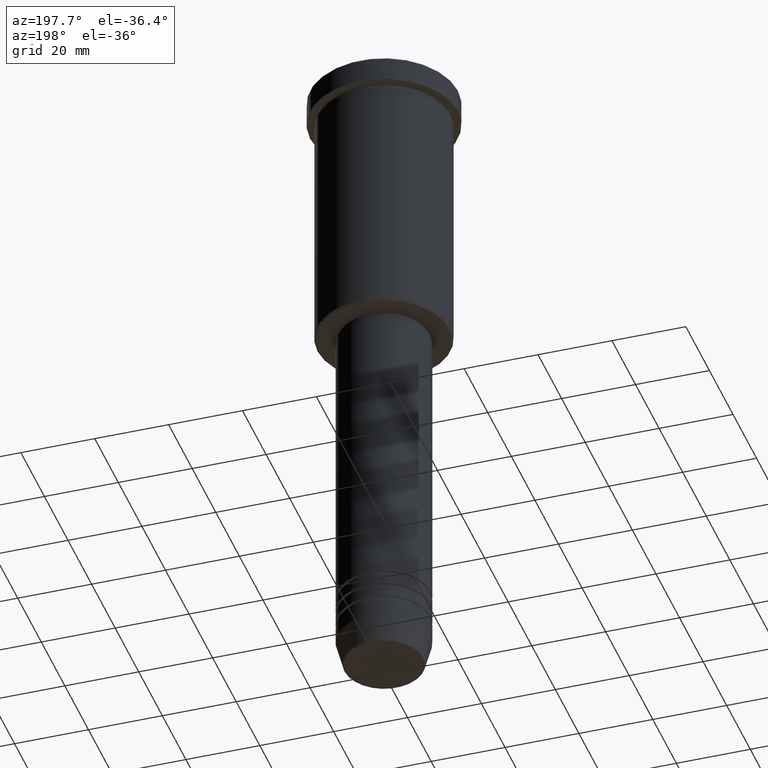
[diagram: clean part render]
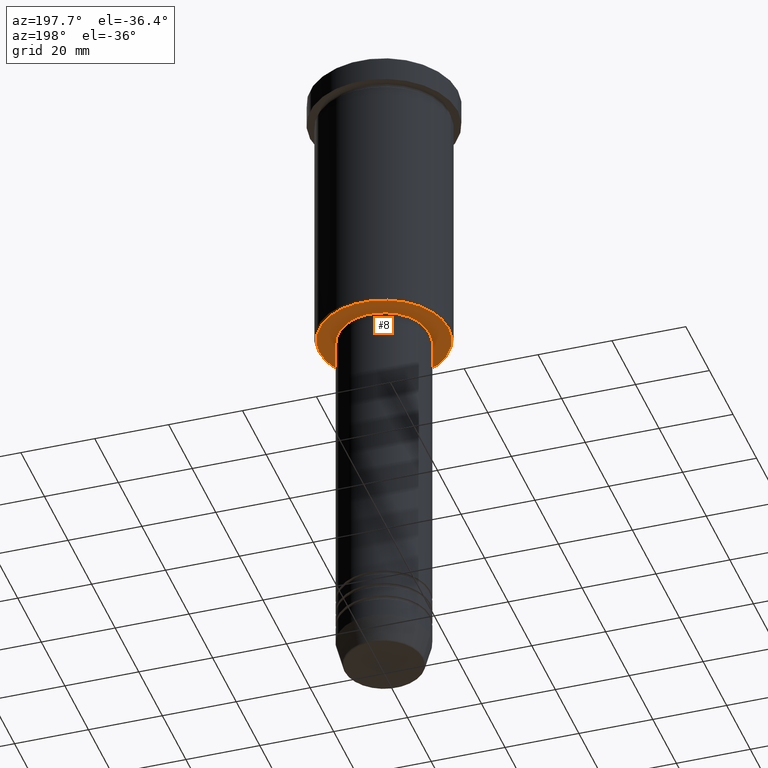
[diagram: same view with one face highlighted and labeled with its STEP entity id]
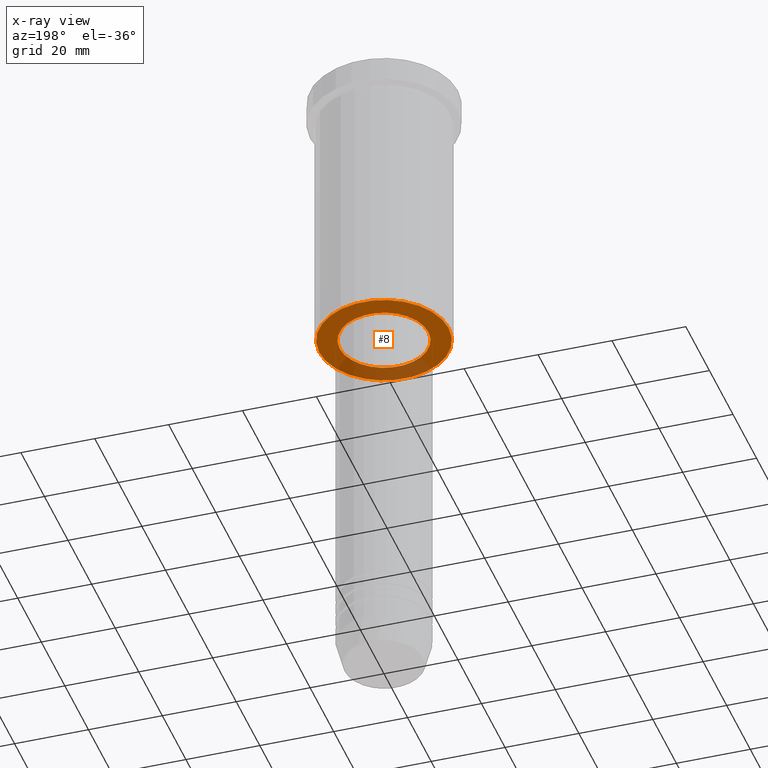
[diagram: x-ray of the same camera — body ghosted, the highlighted face saturated]
A machine part, auxiliary view. The second image highlights one B-rep face of the part: STEP entity #8.
The next image is the same camera in x-ray: the body ghosted, the highlighted face saturated — about 26% of this face is hidden behind the body in this view.
In plain terms, the highlighted planar face has unit normal (0, 0, -1).
Its self-contained STEP definition (entity closure, byte-faithful):
#8 = ADVANCED_FACE ( 'NONE', ( #1099, #1114 ), #106, .T. ) ;
#21 = CARTESIAN_POINT ( 'NONE',  ( 17.50000000000001421, 0.000000000000000000, -76.00000000000001421 ) ) ;
#46 = DIRECTION ( 'NONE',  ( 1.000000000000000000, 0.000000000000000000, 0.000000000000000000 ) ) ;
#74 = VERTEX_POINT ( 'NONE', #645 ) ;
#106 = PLANE ( 'NONE',  #1148 ) ;
#111 = CIRCLE ( 'NONE', #113, 12.00000000000000000 ) ;
#113 = AXIS2_PLACEMENT_3D ( 'NONE', #416, #702, #46 ) ;
#170 = CARTESIAN_POINT ( 'NONE',  ( 0.000000000000000000, 0.000000000000000000, -76.00000000000001421 ) ) ;
#185 = VERTEX_POINT ( 'NONE', #21 ) ;
#189 = DIRECTION ( 'NONE',  ( 0.000000000000000000, 0.000000000000000000, -1.000000000000000000 ) ) ;
#218 = EDGE_CURVE ( 'NONE', #74, #697, #111, .T. ) ;
#283 = CARTESIAN_POINT ( 'NONE',  ( -17.50000000000001421, 2.173748068486552430E-15, -76.00000000000001421 ) ) ;
#345 = ORIENTED_EDGE ( 'NONE', *, *, #798, .T. ) ;
#352 = CIRCLE ( 'NONE', #956, 17.50000000000001421 ) ;
#355 = DIRECTION ( 'NONE',  ( -0.000000000000000000, -0.000000000000000000, 1.000000000000000000 ) ) ;
#416 = CARTESIAN_POINT ( 'NONE',  ( 0.000000000000000000, 0.000000000000000000, -76.00000000000001421 ) ) ;
#418 = EDGE_LOOP ( 'NONE', ( #345, #628 ) ) ;
#456 = CARTESIAN_POINT ( 'NONE',  ( 0.000000000000000000, 0.000000000000000000, -76.00000000000001421 ) ) ;
#504 = EDGE_CURVE ( 'NONE', #697, #74, #692, .T. ) ;
#572 = DIRECTION ( 'NONE',  ( -1.000000000000000000, 0.000000000000000000, -0.000000000000000000 ) ) ;
#615 = DIRECTION ( 'NONE',  ( 0.000000000000000000, 0.000000000000000000, -1.000000000000000000 ) ) ;
#620 = CIRCLE ( 'NONE', #709, 17.50000000000001421 ) ;
#628 = ORIENTED_EDGE ( 'NONE', *, *, #946, .T. ) ;
#645 = CARTESIAN_POINT ( 'NONE',  ( -12.00000000000000000, 1.469576158976823947E-15, -76.00000000000001421 ) ) ;
#692 = CIRCLE ( 'NONE', #972, 12.00000000000000000 ) ;
#697 = VERTEX_POINT ( 'NONE', #1066 ) ;
#702 = DIRECTION ( 'NONE',  ( -0.000000000000000000, -0.000000000000000000, 1.000000000000000000 ) ) ;
#709 = AXIS2_PLACEMENT_3D ( 'NONE', #1169, #615, #1159 ) ;
#798 = EDGE_CURVE ( 'NONE', #185, #890, #620, .T. ) ;
#819 = DIRECTION ( 'NONE',  ( 1.000000000000000000, 0.000000000000000000, 0.000000000000000000 ) ) ;
#890 = VERTEX_POINT ( 'NONE', #283 ) ;
#893 = DIRECTION ( 'NONE',  ( -1.000000000000000000, 0.000000000000000000, 0.000000000000000000 ) ) ;
#898 = DIRECTION ( 'NONE',  ( 0.000000000000000000, 0.000000000000000000, -1.000000000000000000 ) ) ;
#934 = EDGE_LOOP ( 'NONE', ( #955, #1170 ) ) ;
#944 = CARTESIAN_POINT ( 'NONE',  ( 0.000000000000000000, 18.00000000000000000, -76.00000000000001421 ) ) ;
#946 = EDGE_CURVE ( 'NONE', #890, #185, #352, .T. ) ;
#955 = ORIENTED_EDGE ( 'NONE', *, *, #504, .T. ) ;
#956 = AXIS2_PLACEMENT_3D ( 'NONE', #170, #898, #893 ) ;
#972 = AXIS2_PLACEMENT_3D ( 'NONE', #456, #355, #819 ) ;
#1066 = CARTESIAN_POINT ( 'NONE',  ( 12.00000000000000000, 0.000000000000000000, -76.00000000000001421 ) ) ;
#1099 = FACE_OUTER_BOUND ( 'NONE', #418, .T. ) ;
#1114 = FACE_BOUND ( 'NONE', #934, .T. ) ;
#1148 = AXIS2_PLACEMENT_3D ( 'NONE', #944, #189, #572 ) ;
#1159 = DIRECTION ( 'NONE',  ( -1.000000000000000000, 0.000000000000000000, 0.000000000000000000 ) ) ;
#1169 = CARTESIAN_POINT ( 'NONE',  ( 0.000000000000000000, 0.000000000000000000, -76.00000000000001421 ) ) ;
#1170 = ORIENTED_EDGE ( 'NONE', *, *, #218, .T. ) ;